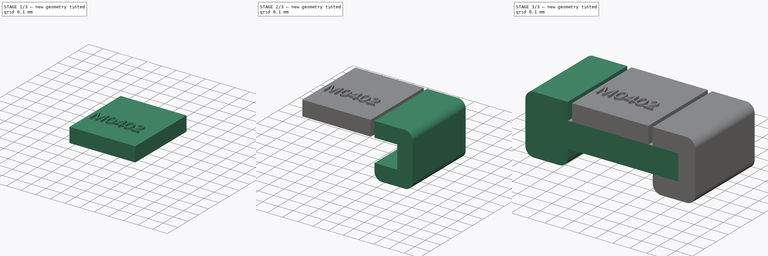
[diagram: build sequence overview — one tinted view per stage of 3, left to right]
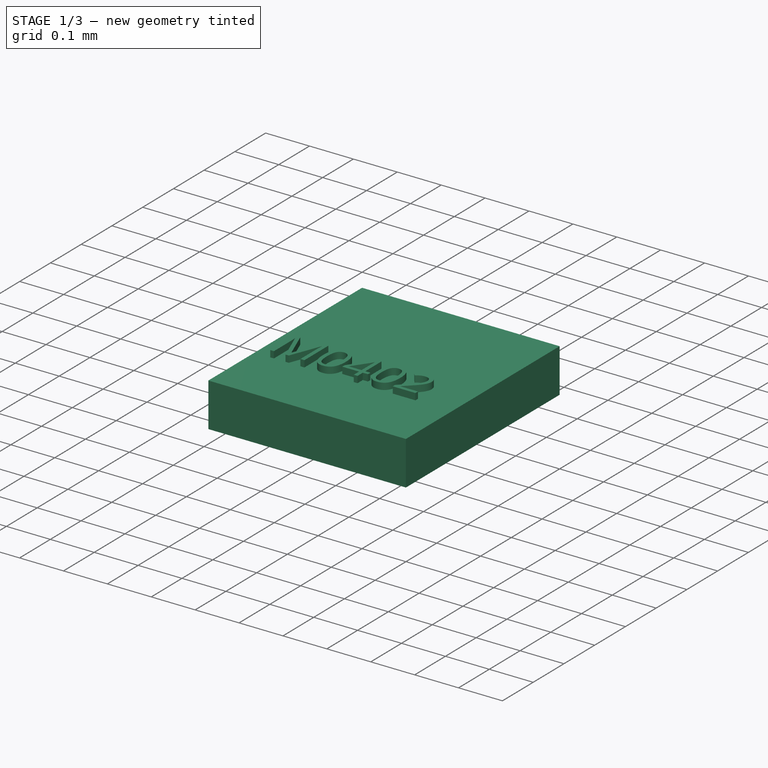
[diagram: stage 1 of 3 — iso view after this stage's code; geometry added in this stage tinted green]
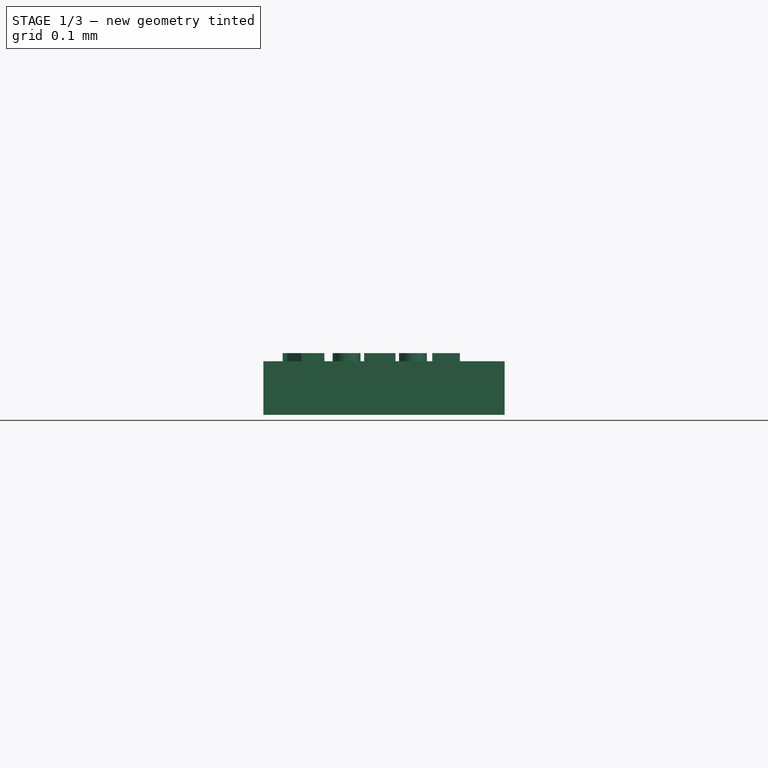
[diagram: stage 1 of 3 — front view after this stage's code; geometry added in this stage tinted green]
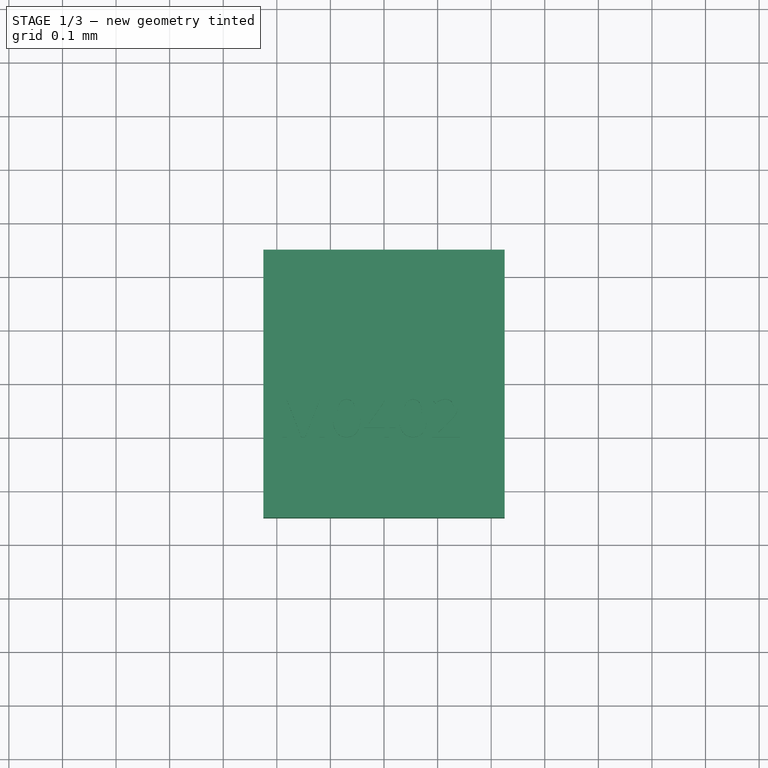
[diagram: stage 1 of 3 — top view after this stage's code; geometry added in this stage tinted green]
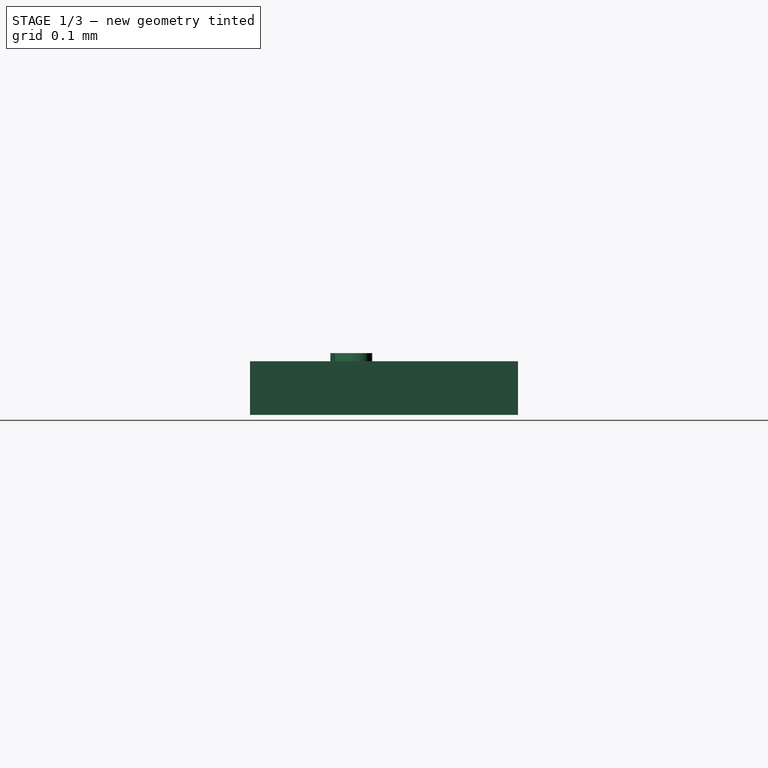
[diagram: stage 1 of 3 — right view after this stage's code; geometry added in this stage tinted green]
FCSTD DOCUMENT  (FreeCAD 0.18.1R)
Label: smt_chip_parametric
License: All rights reserved
LicenseURL: http://en.wikipedia.org/wiki/All_rights_reserved
objects: Sketcher::SketchObject×3, PartDesign::Pad×3, PartDesign::Body×3, Part::Fillet×2, Spreadsheet::Sheet×1, Part::Mirroring×1, Part::Part2DObjectPython×1, Part::Extrusion×1
note: 17 computed .brp shape members not serialized (recipe doc carries the construction recipe); baked Part::Feature solids carry a one-line shape summary decoded from their .brp

FEATURE [Sketcher::SketchObject] Sketch002
  AttachmentOffset = pos=(0,0,0.15) rot=(0,0,1;0rad)
  MapMode = 5
  Placement = pos=(0,0,0.15) rot=(0,0,1;0rad)
  Support = -> [XY_Plane002]
  expr: AttachmentOffset.Base.z = Spreadsheet.height - Spreadsheet.metal_thickness * 2
  expr: Constraints[8] = Spreadsheet.width
  expr: Constraints[9] = Spreadsheet.length - Spreadsheet.metal_length * 2 - 0.05mm
  sketch-geometry (4):
    g0: LineSegment StartX=-0.225 StartY=0.25 StartZ=0 EndX=0.225 EndY=0.25 EndZ=0
    g1: LineSegment StartX=0.225 StartY=0.25 StartZ=0 EndX=0.225 EndY=-0.25 EndZ=0
    g2: LineSegment StartX=0.225 StartY=-0.25 StartZ=0 EndX=-0.225 EndY=-0.25 EndZ=0
    g3: LineSegment StartX=-0.225 StartY=-0.25 StartZ=0 EndX=-0.225 EndY=0.25 EndZ=0
  constraints (10):
    c: Coincident(g0,g1)
    c: Coincident(g1,g2)
    c: Coincident(g2,g3)
    c: Coincident(g3,g0)
    c: Horizontal(g2)
    c: Vertical(g1)
    c: Symmetric(g0,g0,g-2)
    c: Symmetric(g0,g2,g-1)
    c: DistanceY(g3,g3) = 0.5
    c: DistanceX(g0,g0) = 0.45
FEATURE [PartDesign::Pad] Pad002
  Length = 0.1
  Length2 = 100
  Profile = -> Sketch002
  Refine = true
  Type = 0
  expr: Length = Spreadsheet.metal_thickness
FEATURE [PartDesign::Body] Body002  label="BlackTop"
  Group = -> [Sketch002,Pad002]
  Origin = -> Origin002
  Tip = -> Pad002
FEATURE [Part::Part2DObjectPython] ShapeString  # Draft 2D object (typed FeaturePython)
  FontFile = <path>
  Placement = pos=(-0.1,0,0.265) rot=(0,0,1;0rad)
  Size = 0.1
  String = M0402
  Tracking = 0
  expr: Size = Spreadsheet.font_height
  expr: Placement.Base.z = Spreadsheet.height - Spreadsheet.metal_thickness * 0.85
FEATURE [Part::Extrusion] Extrude  label="Text_Extrude"
  Base = -> ShapeString
  Dir = (0,0,1)
  DirMode = 2
  FaceMakerClass = Part::FaceMakerBullseye
  LengthFwd = 0.025
  LengthRev = 0
  Placement = pos=(-0.1,-0.1,0) rot=(0,0,1;0rad)
  Reversed = true
  Solid = false
  Symmetric = false
note: 1 file-system path scrubbed to <path> (originals preserved in the JSON sidecar)
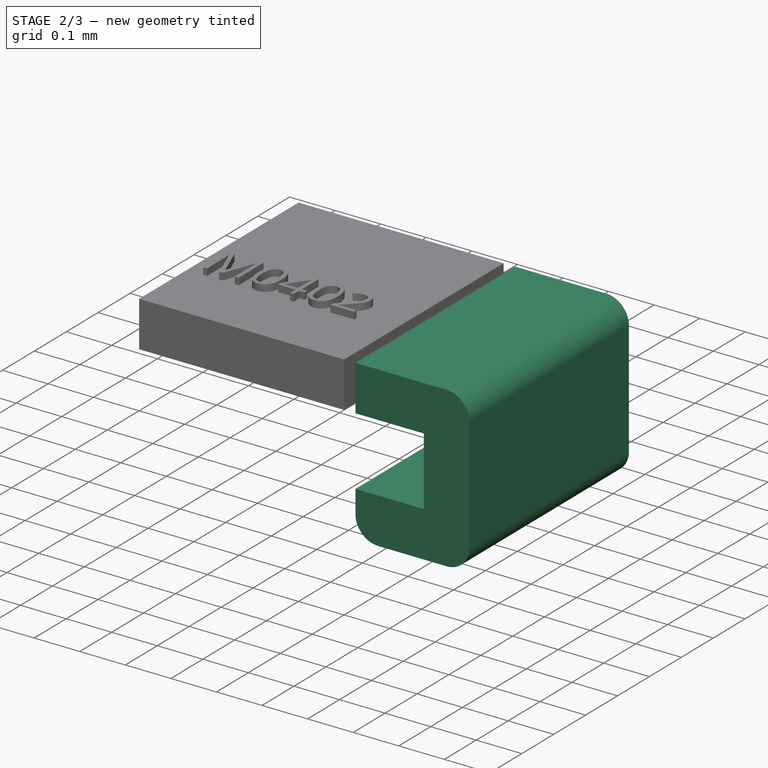
[diagram: stage 2 of 3 — iso view after this stage's code; geometry added in this stage tinted green]
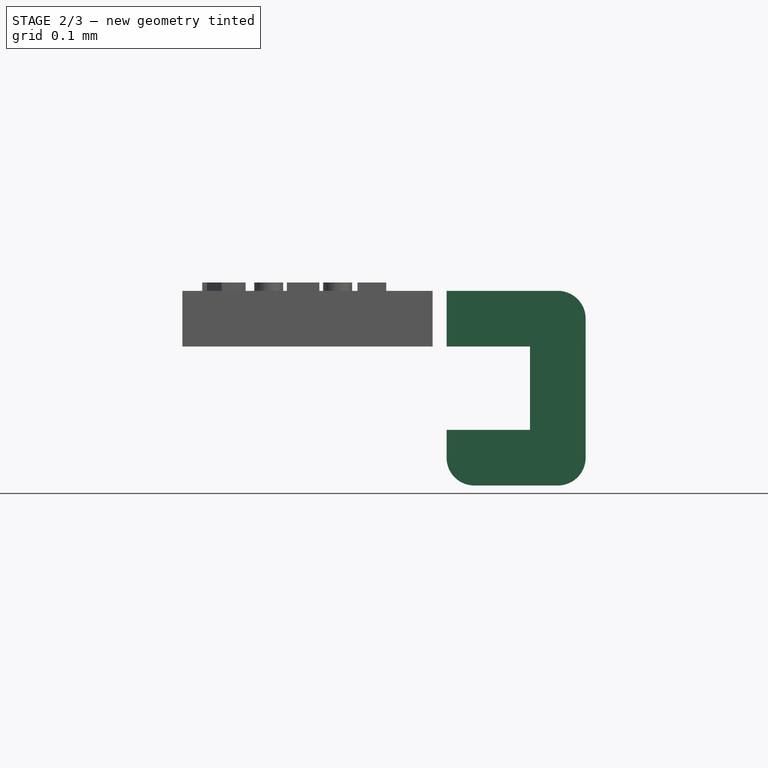
[diagram: stage 2 of 3 — front view after this stage's code; geometry added in this stage tinted green]
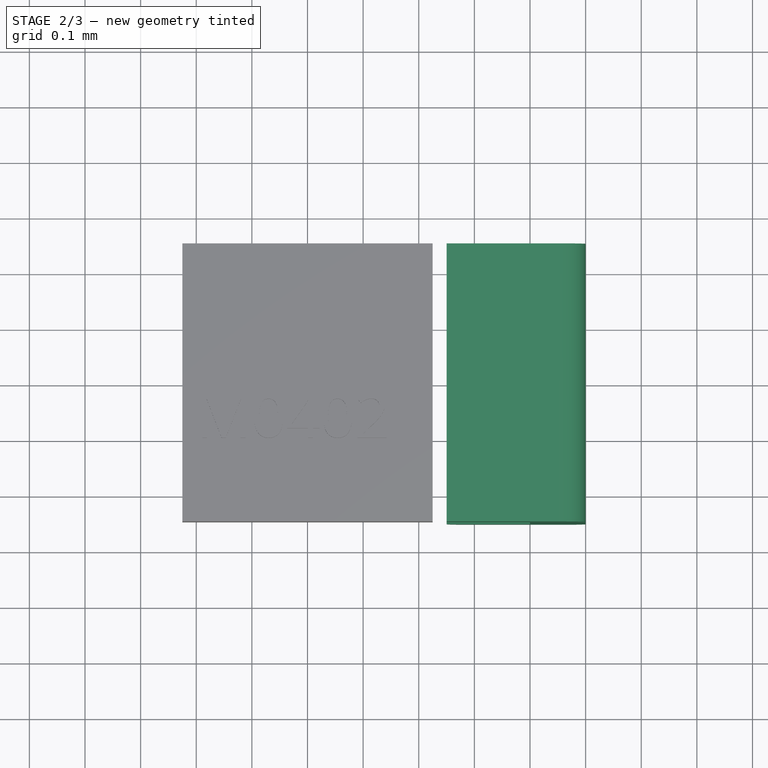
[diagram: stage 2 of 3 — top view after this stage's code; geometry added in this stage tinted green]
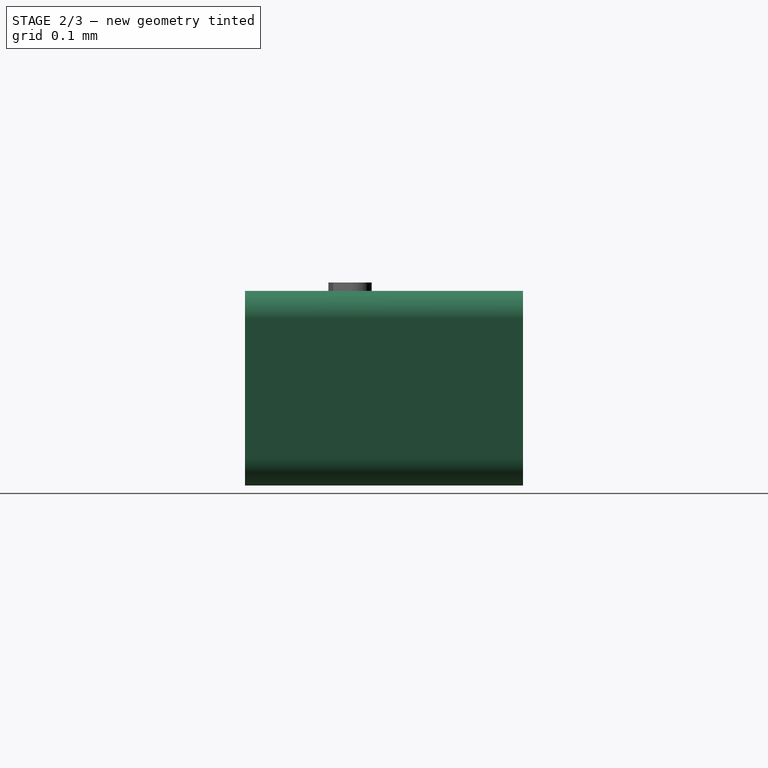
[diagram: stage 2 of 3 — right view after this stage's code; geometry added in this stage tinted green]
FEATURE [PartDesign::Body] Body
  Group = -> [Sketch,Pad]
  Origin = -> Origin
  Tip = -> Pad
FEATURE [Sketcher::SketchObject] Sketch001
  MapMode = 5
  Placement = pos=(0,0,0) rot=(1,0,0;1.5708rad)
  Support = -> [XZ_Plane001]
  expr: Constraints[23] = Spreadsheet.metal_thickness
  expr: Constraints[21] = Spreadsheet.length / 2
  expr: Constraints[18] = Spreadsheet.height
  expr: Constraints[17] = Spreadsheet.metal_thickness
  expr: Constraints[20] = Spreadsheet.metal_length
  sketch-geometry (8):
    g0: LineSegment StartX=-0.25 StartY=0.15 StartZ=0 EndX=-0.4 EndY=0.15 EndZ=0
    g1: LineSegment StartX=-0.4 StartY=0.15 StartZ=0 EndX=-0.4 EndY=0 EndZ=0
    g2: LineSegment StartX=-0.4 StartY=0 StartZ=0 EndX=-0.25 EndY=0 EndZ=0
    g3: LineSegment StartX=-0.25 StartY=0 StartZ=0 EndX=-0.25 EndY=-0.1 EndZ=0
    g4: LineSegment StartX=-0.25 StartY=-0.1 StartZ=0 EndX=-0.5 EndY=-0.1 EndZ=0
    g5: LineSegment StartX=-0.5 StartY=-0.1 StartZ=0 EndX=-0.5 EndY=0.25 EndZ=0
    g6: LineSegment StartX=-0.5 StartY=0.25 StartZ=0 EndX=-0.25 EndY=0.25 EndZ=0
    g7: LineSegment StartX=-0.25 StartY=0.25 StartZ=0 EndX=-0.25 EndY=0.15 EndZ=0
  constraints (24):
    c: Horizontal(g0)
    c: Coincident(g0,g1)
    c: Vertical(g1)
    c: Coincident(g1,g2)
    c: Horizontal(g2)
    c: Coincident(g2,g3)
    c: Vertical(g3)
    c: Coincident(g3,g4)
    c: Coincident(g4,g5)
    c: Vertical(g5)
    c: Coincident(g5,g6)
    c: Horizontal(g6)
    c: Coincident(g6,g7)
    c: Coincident(g7,g0)
    c: Horizontal(g4)
    c: Equal(g0,g2)
    c: Equal(g6,g4)
    c: DistanceY(g7,g7) = 0.1
    c: DistanceY(g5,g5) = 0.35
    c: DistanceY(g1,g-1) = 0
    c: DistanceX(g4,g4) = 0.25
    c: DistanceX(g4,g-1) = 0.5
    c: Equal(g7,g3)
    c: DistanceX(g5,g0) = 0.1
FEATURE [PartDesign::Pad] Pad001
  Length = 0.5
  Length2 = 100
  Midplane = true
  Placement = pos=(0,0,0) rot=(1,0,0;1.5708rad)
  Profile = -> Sketch001
  Refine = true
  Type = 0
  expr: Length = Spreadsheet.width
FEATURE [PartDesign::Body] Body001
  Group = -> [Sketch001,Pad001]
  Origin = -> Origin001
  Tip = -> Pad001
FEATURE [Part::Mirroring] mirror  label="Mirror of Pad001"
  Base = (0,2,0)
  Normal = (1,0,0)
  Source = -> Pad001
FEATURE [Part::Fillet] Fillet001  label="right_pad"
  Base = -> mirror
  Edges = 3 edges r=0.05: [Edge11,Edge14,Edge17]
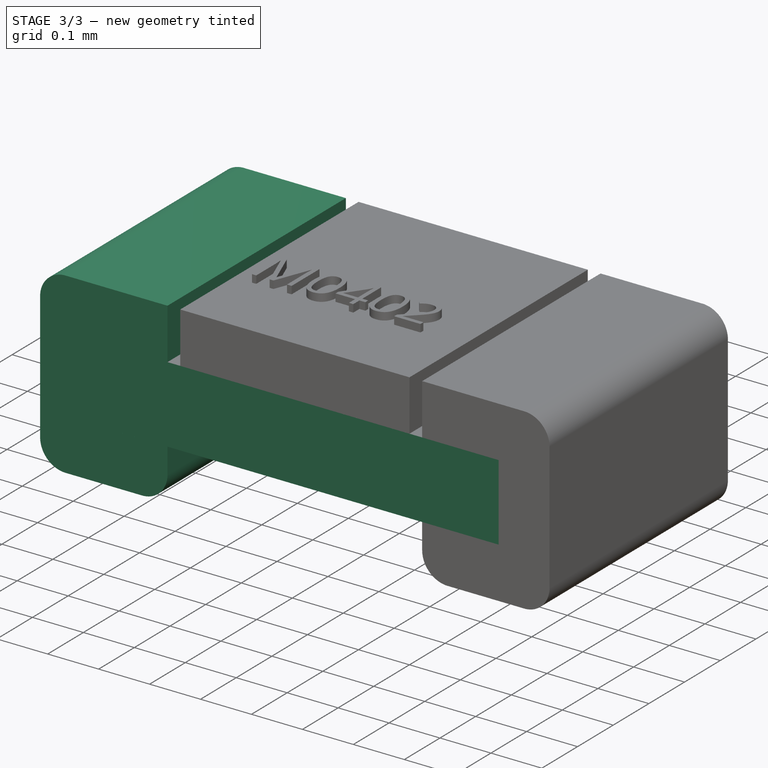
[diagram: stage 3 of 3 — iso view after this stage's code; geometry added in this stage tinted green]
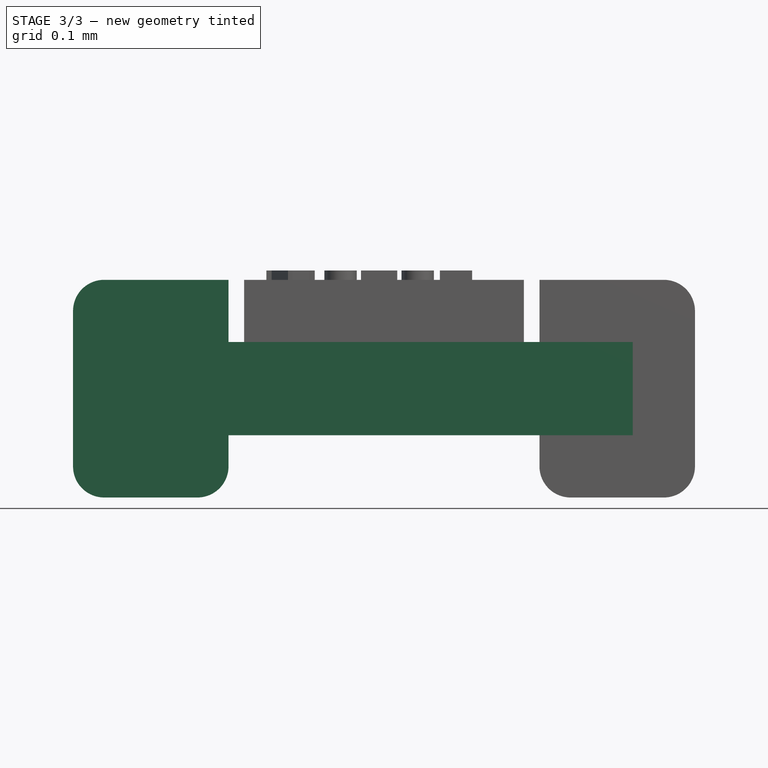
[diagram: stage 3 of 3 — front view after this stage's code; geometry added in this stage tinted green]
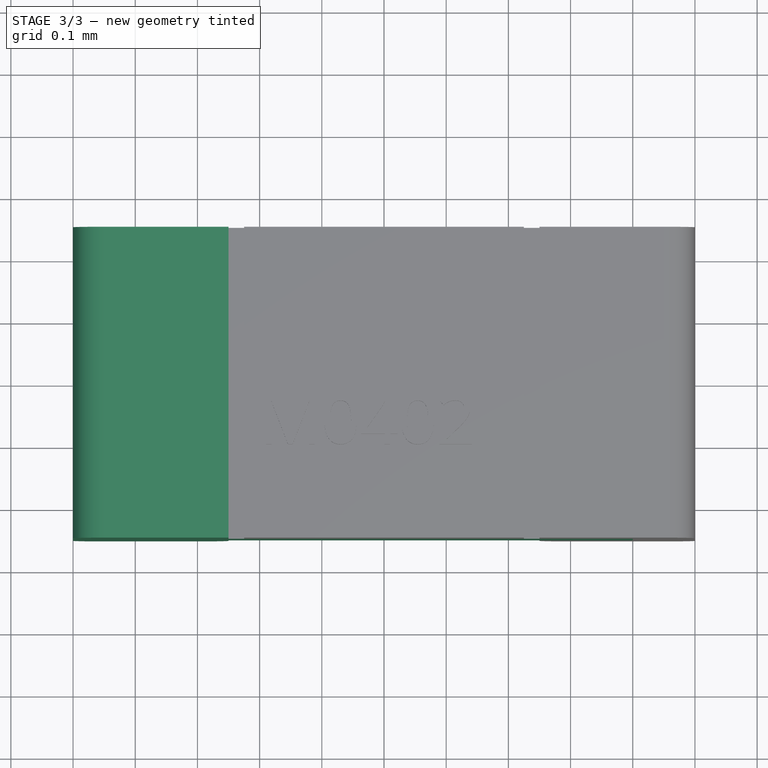
[diagram: stage 3 of 3 — top view after this stage's code; geometry added in this stage tinted green]
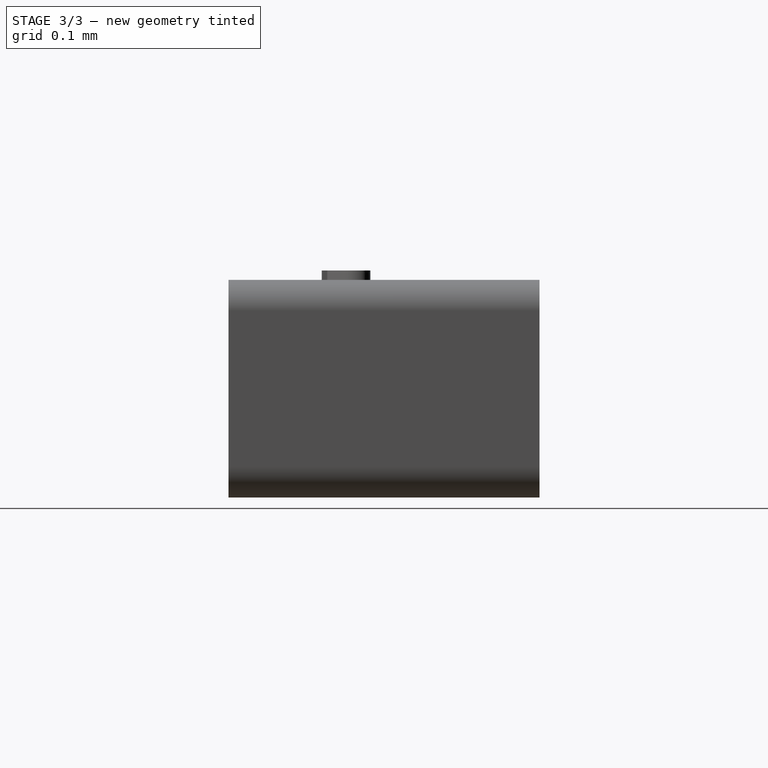
[diagram: stage 3 of 3 — right view after this stage's code; geometry added in this stage tinted green]
FEATURE [Sketcher::SketchObject] Sketch
  MapMode = 5
  Support = -> [XY_Plane]
  expr: Constraints[9] = Spreadsheet.width
  expr: Constraints[8] = Spreadsheet.length - Spreadsheet.metal_thickness * 2
  sketch-geometry (4):
    g0: LineSegment StartX=-0.4 StartY=0.25 StartZ=0 EndX=0.4 EndY=0.25 EndZ=0
    g1: LineSegment StartX=0.4 StartY=0.25 StartZ=0 EndX=0.4 EndY=-0.25 EndZ=0
    g2: LineSegment StartX=0.4 StartY=-0.25 StartZ=0 EndX=-0.4 EndY=-0.25 EndZ=0
    g3: LineSegment StartX=-0.4 StartY=-0.25 StartZ=0 EndX=-0.4 EndY=0.25 EndZ=0
  constraints (10):
    c: Coincident(g0,g1)
    c: Coincident(g1,g2)
    c: Coincident(g2,g3)
    c: Coincident(g3,g0)
    c: Horizontal(g2)
    c: Vertical(g1)
    c: Symmetric(g0,g0,g-2)
    c: Symmetric(g0,g2,g-1)
    c: DistanceX(g0,g0) = 0.8
    c: DistanceY(g3,g3) = 0.5
FEATURE [Spreadsheet::Sheet] Spreadsheet
  cells = D1=M0201; E1=M0402; F1=M0603; G1=M0805; H1=M1206; I1=M1210; J1=M1218; K1=M2010; L1=M2512; B2=Length; C2(length)==1mm; D2==0.6mm; E2==1mm; F2==1.55mm; G2==2mm; H2==3.2mm; I2==3.2mm; J2==3.2mm; K2==5mm; L2==6.3mm; B3=Width; C3(width)==0.5mm; D3==0.3mm; E3==0.5mm; F3==0.85mm; G3==1.2mm; H3==1.6mm; I3==2.5mm; J3==4.6mm; K3==2.5mm; L3==3.2mm; B4=Height; C4(height)==0.35mm; D4==0.25mm; E4==0.35mm; F4==0.45mm; G4==0.45mm; H4==0.55mm; I4==0.55mm; J4==0.55mm; K4==0.6mm; L4==0.6mm; B5=Metal Length; C5(metal_length)==0.25mm; D5==0.15mm; E5==0.25mm; F5==0.3mm; G5==0.35mm; H5==0.35mm; I5==0.45mm; J5==0.45mm; K5==0.45mm; L5==0.8mm; B6=Metal Thickness; C6(metal_thickness)==0.1mm; D6==0.1mm; E6==0.1mm; F6==0.1mm; G6==0.1mm; H6==0.1mm; I6==0.1mm; J6==0.1mm; K6==0.1mm; B7=Font Height; C7(font_height)==0.1mm; D7==0.06mm; E7==0.1mm; F7==0.2mm; G7==0.3mm; H7==0.5mm; I7==0.5mm; J7==0.5mm; K7==1mm
FEATURE [PartDesign::Pad] Pad
  Length = 0.15
  Length2 = 100
  Profile = -> Sketch
  Refine = true
  Type = 0
  expr: Length = Spreadsheet.height - Spreadsheet.metal_thickness * 2
FEATURE [Part::Fillet] Fillet  label="left_pad"
  Base = -> Pad001
  Edges = 3 edges r=0.05: [Edge11,Edge14,Edge17]
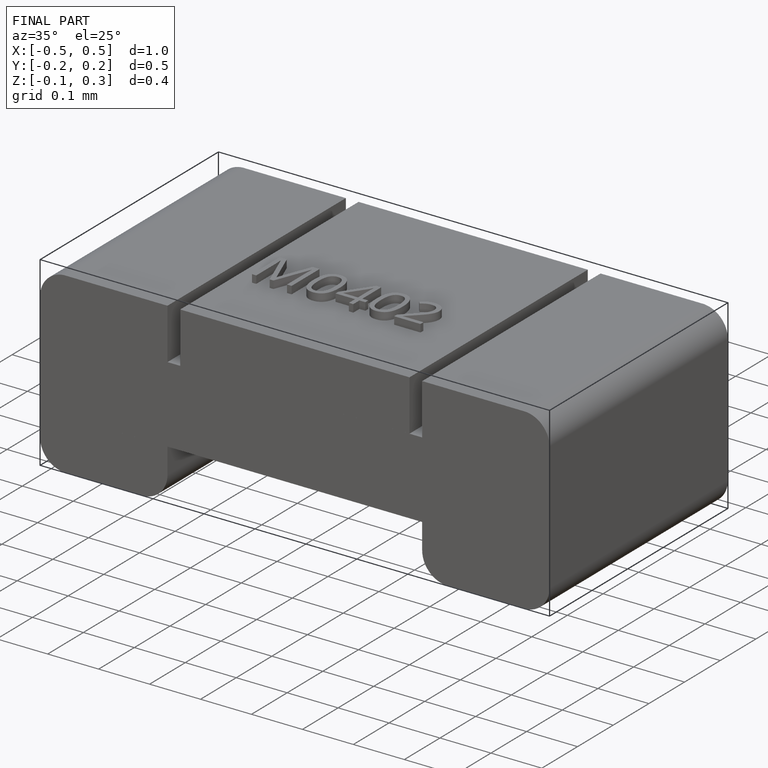
[diagram: finished part — iso view with bounding-box wireframe]
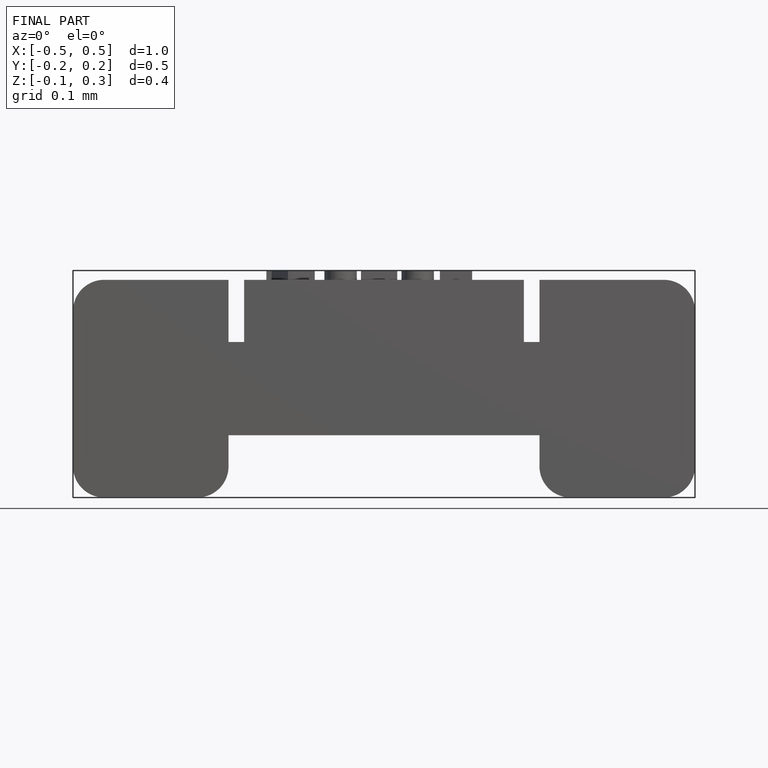
[diagram: finished part — front view with bounding-box wireframe]
